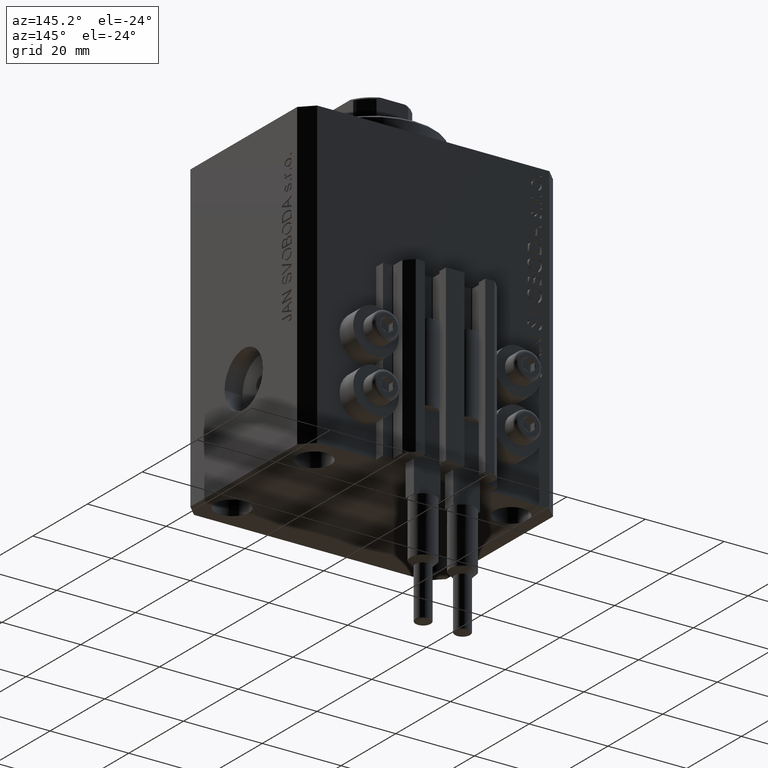
[diagram: clean part render]
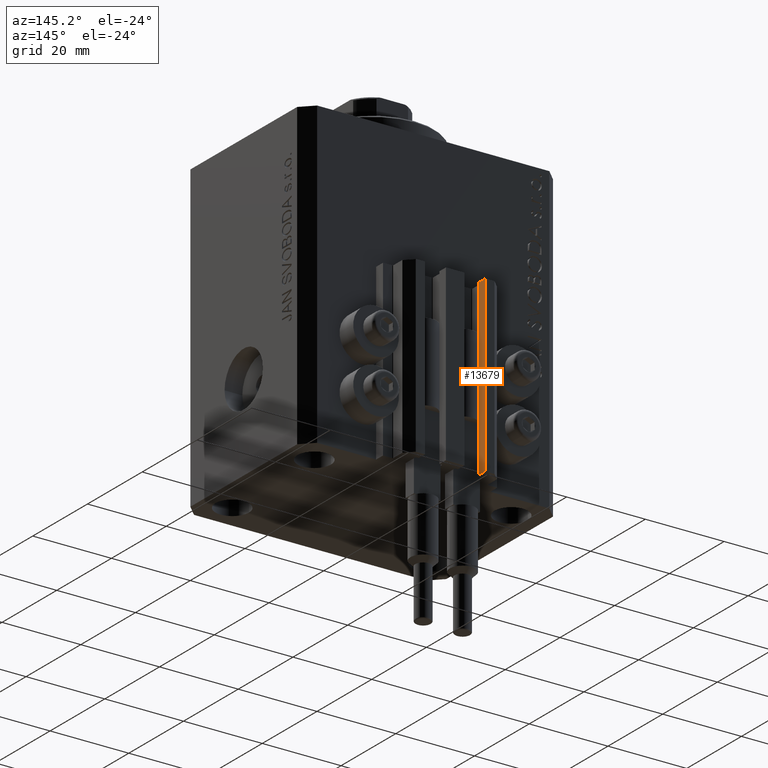
[diagram: same view with one face highlighted and labeled with its STEP entity id]
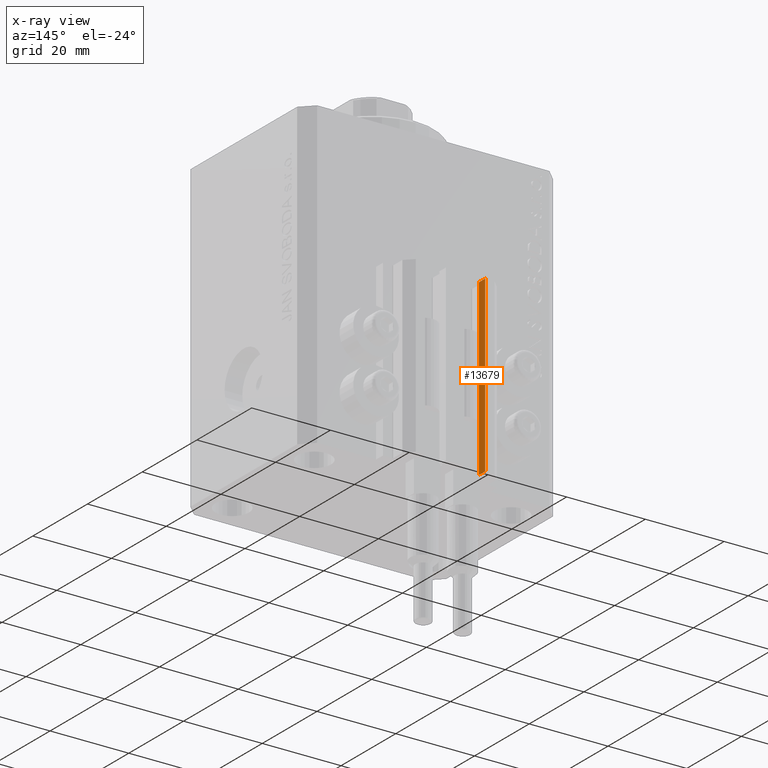
[diagram: x-ray of the same camera — body ghosted, the highlighted face saturated]
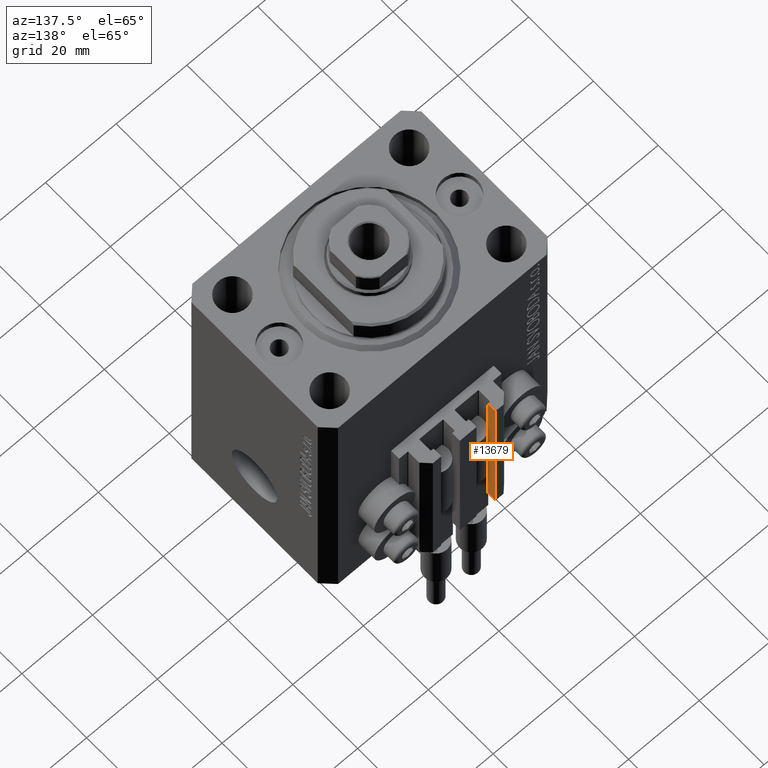
[diagram: same view with one face highlighted and labeled with its STEP entity id]
A machine part, auxiliary view. The second image highlights one B-rep face of the part: STEP entity #13679.
The next image is the same camera in x-ray: the body ghosted, the highlighted face saturated — about 0% of this face is hidden behind the body in this view.
A second angle (auxiliary view) of the same face is appended — the face is thin or edge-on in the first view.
In plain terms, the highlighted planar face has unit normal (1, 0, 0).
Its self-contained STEP definition (entity closure, byte-faithful):
#429 = AXIS2_PLACEMENT_3D ( 'NONE', #27603, #9871, #39000 ) ;
#1864 = PLANE ( 'NONE',  #429 ) ;
#4460 = EDGE_CURVE ( 'NONE', #34108, #18793, #13175, .T. ) ;
#7004 = EDGE_LOOP ( 'NONE', ( #17181, #16577, #35444, #47793 ) ) ;
#9620 = EDGE_CURVE ( 'NONE', #25354, #34108, #41790, .T. ) ;
#9871 = DIRECTION ( 'NONE',  ( 1.000000000000000000, 0.000000000000000000, 0.000000000000000000 ) ) ;
#11784 = VECTOR ( 'NONE', #19991, 1000.000000000000000 ) ;
#13175 = LINE ( 'NONE', #39145, #11784 ) ;
#13679 = ADVANCED_FACE ( 'NONE', ( #17159 ), #1864, .T. ) ;
#13881 = EDGE_CURVE ( 'NONE', #28338, #18793, #33856, .T. ) ;
#14932 = DIRECTION ( 'NONE',  ( 0.000000000000000000, 0.000000000000000000, 1.000000000000000000 ) ) ;
#16577 = ORIENTED_EDGE ( 'NONE', *, *, #9620, .F. ) ;
#16713 = EDGE_CURVE ( 'NONE', #25354, #28338, #23287, .T. ) ;
#17159 = FACE_OUTER_BOUND ( 'NONE', #7004, .T. ) ;
#17181 = ORIENTED_EDGE ( 'NONE', *, *, #4460, .F. ) ;
#18793 = VERTEX_POINT ( 'NONE', #37063 ) ;
#19723 = CARTESIAN_POINT ( 'NONE',  ( -7.650000000000000355, 28.09999999999948628, -77.00000000000000000 ) ) ;
#19991 = DIRECTION ( 'NONE',  ( 0.000000000000000000, 1.000000000000000000, 0.000000000000000000 ) ) ;
#22158 = VECTOR ( 'NONE', #37846, 1000.000000000000000 ) ;
#22560 = CARTESIAN_POINT ( 'NONE',  ( -7.650000000000000355, 28.09999999999948628, -77.00000000000000000 ) ) ;
#22681 = CARTESIAN_POINT ( 'NONE',  ( -7.650000000000000355, 28.09999999999948628, -33.00000000000000000 ) ) ;
#23287 = LINE ( 'NONE', #22560, #22158 ) ;
#25204 = CARTESIAN_POINT ( 'NONE',  ( -7.650000000000000355, 30.49999999999948486, -77.00000000000000000 ) ) ;
#25354 = VERTEX_POINT ( 'NONE', #28488 ) ;
#27603 = CARTESIAN_POINT ( 'NONE',  ( -7.650000000000000355, 28.09999999999948628, -77.00000000000000000 ) ) ;
#28338 = VERTEX_POINT ( 'NONE', #25204 ) ;
#28488 = CARTESIAN_POINT ( 'NONE',  ( -7.650000000000000355, 28.09999999999948628, -77.00000000000000000 ) ) ;
#33856 = LINE ( 'NONE', #37493, #43137 ) ;
#34108 = VERTEX_POINT ( 'NONE', #22681 ) ;
#34516 = DIRECTION ( 'NONE',  ( 0.000000000000000000, 0.000000000000000000, 1.000000000000000000 ) ) ;
#35444 = ORIENTED_EDGE ( 'NONE', *, *, #16713, .T. ) ;
#37063 = CARTESIAN_POINT ( 'NONE',  ( -7.650000000000000355, 30.49999999999948486, -33.00000000000000000 ) ) ;
#37493 = CARTESIAN_POINT ( 'NONE',  ( -7.650000000000000355, 30.49999999999948486, -77.00000000000000000 ) ) ;
#37846 = DIRECTION ( 'NONE',  ( 0.000000000000000000, 1.000000000000000000, 0.000000000000000000 ) ) ;
#39000 = DIRECTION ( 'NONE',  ( 0.000000000000000000, 0.000000000000000000, -1.000000000000000000 ) ) ;
#39145 = CARTESIAN_POINT ( 'NONE',  ( -7.650000000000000355, 28.09999999999948628, -33.00000000000000000 ) ) ;
#39869 = VECTOR ( 'NONE', #34516, 1000.000000000000000 ) ;
#41790 = LINE ( 'NONE', #19723, #39869 ) ;
#43137 = VECTOR ( 'NONE', #14932, 1000.000000000000000 ) ;
#47793 = ORIENTED_EDGE ( 'NONE', *, *, #13881, .T. ) ;